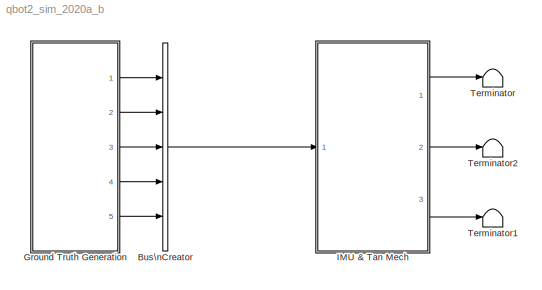
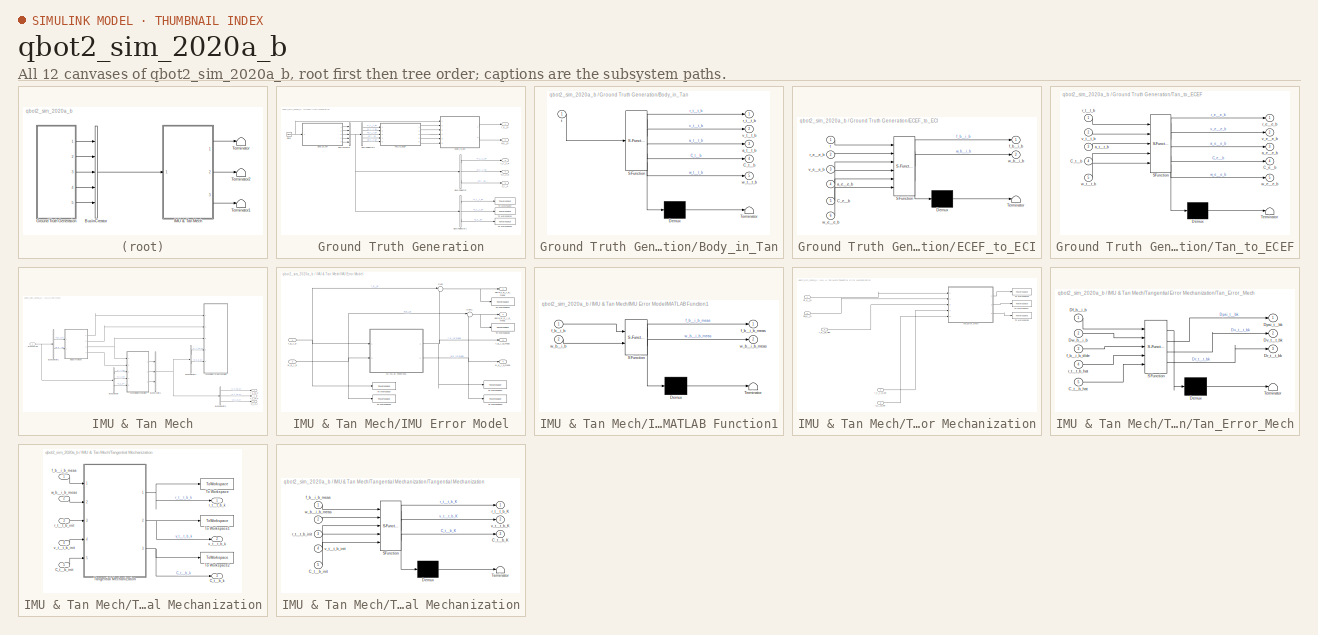
[diagram: thumbnail index - all 12 canvases of the model, root first then tree order]
MODEL qbot2_sim_2020a_b
KIND model
CONFIG InitFcn = % load_qbot2_sim
CONFIG StopFcn = if (P.plotsim_flag)\n    plot_sim(out, P)\nend
BLOCK [BusCreator] Bus\nCreator
  DisplayOption = bar
  InheritFromInputs = on
  Inputs = 5
  Ports = [5, 1]
  SID = 168
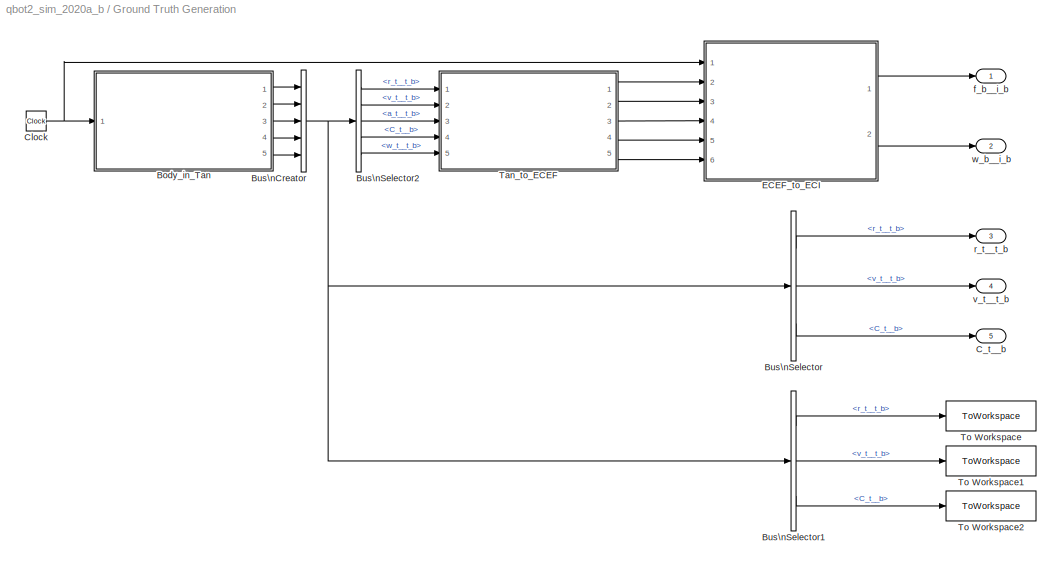
BLOCK [SubSystem] Ground Truth Generation
  Ports = [0, 5]
  RequestExecContextInheritance = off
  SID = 83
BLOCK [SubSystem] Ground Truth Generation/Body_in_Tan
  ErrorFcn = Stateflow.Translate.translate
  PermitHierarchicalResolution = ExplicitOnly
  Ports = [1, 5]
  RequestExecContextInheritance = off
  SFBlockType = MATLAB Function
  SID = 55
  TreatAsAtomicUnit = on
BLOCK [Demux] Ground Truth Generation/Body_in_Tan/ Demux 
  Outputs = 1
  Ports = [1, 1]
  SID = 55::31
BLOCK [S-Function] Ground Truth Generation/Body_in_Tan/ SFunction 
  EnableBusSupport = on
  FunctionName = sf_sfun
  Parameters = P
  PortCounts = [1 6]
  Ports = [1, 6]
  SFcnIsStateOwnerBlock = off
  SFunctionDeploymentMode = off
  SID = 55::30
  Tag = Stateflow S-Function 1
BLOCK [Terminator] Ground Truth Generation/Body_in_Tan/ Terminator 
  SID = 55::32
BLOCK [Outport] Ground Truth Generation/Body_in_Tan/C_t__b
  Port = 4
  SID = 55::25
BLOCK [Outport] Ground Truth Generation/Body_in_Tan/a_t__t_b
  Port = 3
  SID = 55::24
BLOCK [Outport] Ground Truth Generation/Body_in_Tan/r_t__t_b
  SID = 55::5
BLOCK [Inport] Ground Truth Generation/Body_in_Tan/t
  SID = 55::1
BLOCK [Outport] Ground Truth Generation/Body_in_Tan/v_t__t_b
  Port = 2
  SID = 55::23
BLOCK [Outport] Ground Truth Generation/Body_in_Tan/w_t__t_b
  Port = 5
  SID = 55::26
BLOCK [BusCreator] Ground Truth Generation/Bus\nCreator
  DisplayOption = bar
  InheritFromInputs = on
  Inputs = 5
  Ports = [5, 1]
  SID = 89
BLOCK [BusSelector] Ground Truth Generation/Bus\nSelector
  OutputSignals = r_t__t_b,v_t__t_b,C_t__b
  Ports = [1, 3]
  SID = 90
BLOCK [BusSelector] Ground Truth Generation/Bus\nSelector1
  OutputSignals = r_t__t_b,v_t__t_b,C_t__b
  Ports = [1, 3]
  SID = 116
BLOCK [BusSelector] Ground Truth Generation/Bus\nSelector2
  OutputSignals = r_t__t_b,v_t__t_b,a_t__t_b,C_t__b,w_t__t_b
  Ports = [1, 5]
  SID = 92
BLOCK [Outport] Ground Truth Generation/C_t__b
  Port = 5
  SID = 87
BLOCK [Clock] Ground Truth Generation/Clock
  SID = 53
BLOCK [SubSystem] Ground Truth Generation/ECEF_to_ECI
  ErrorFcn = Stateflow.Translate.translate
  PermitHierarchicalResolution = ExplicitOnly
  Ports = [6, 2]
  RequestExecContextInheritance = off
  SFBlockType = MATLAB Function
  SID = 57
  TreatAsAtomicUnit = on
BLOCK [Demux] Ground Truth Generation/ECEF_to_ECI/ Demux 
  Outputs = 1
  Ports = [1, 1]
  SID = 57::33
BLOCK [S-Function] Ground Truth Generation/ECEF_to_ECI/ SFunction 
  EnableBusSupport = on
  FunctionName = sf_sfun
  Parameters = P
  PortCounts = [6 3]
  Ports = [6, 3]
  SFcnIsStateOwnerBlock = off
  SFunctionDeploymentMode = off
  SID = 57::32
  Tag = Stateflow S-Function 4
BLOCK [Terminator] Ground Truth Generation/ECEF_to_ECI/ Terminator 
  SID = 57::34
BLOCK [Inport] Ground Truth Generation/ECEF_to_ECI/C_e__b
  Port = 5
  SID = 57::25
BLOCK [Inport] Ground Truth Generation/ECEF_to_ECI/a_e__e_b
  Port = 4
  SID = 57::24
BLOCK [Outport] Ground Truth Generation/ECEF_to_ECI/f_b__i_b
  SID = 57::5
BLOCK [Inport] Ground Truth Generation/ECEF_to_ECI/r_e__e_b
  Port = 2
  SID = 57::22
BLOCK [Inport] Ground Truth Generation/ECEF_to_ECI/t
  SID = 57::1
BLOCK [Inport] Ground Truth Generation/ECEF_to_ECI/v_e__e_b
  Port = 3
  SID = 57::23
BLOCK [Outport] Ground Truth Generation/ECEF_to_ECI/w_b__i_b
  Port = 2
  SID = 57::28
BLOCK [Inport] Ground Truth Generation/ECEF_to_ECI/w_e__e_b
  Port = 6
  SID = 57::26
BLOCK [SubSystem] Ground Truth Generation/Tan_to_ECEF
  ErrorFcn = Stateflow.Translate.translate
  PermitHierarchicalResolution = ExplicitOnly
  Ports = [5, 5]
  RequestExecContextInheritance = off
  SFBlockType = MATLAB Function
  SID = 56
  TreatAsAtomicUnit = on
BLOCK [Demux] Ground Truth Generation/Tan_to_ECEF/ Demux 
  Outputs = 1
  Ports = [1, 1]
  SID = 56::36
BLOCK [S-Function] Ground Truth Generation/Tan_to_ECEF/ SFunction 
  EnableBusSupport = on
  FunctionName = sf_sfun
  Parameters = P
  PortCounts = [5 6]
  Ports = [5, 6]
  SFcnIsStateOwnerBlock = off
  SFunctionDeploymentMode = off
  SID = 56::35
  Tag = Stateflow S-Function 3
BLOCK [Terminator] Ground Truth Generation/Tan_to_ECEF/ Terminator 
  SID = 56::37
BLOCK [Outport] Ground Truth Generation/Tan_to_ECEF/C_e__b
  Port = 4
  SID = 56::30
BLOCK [Inport] Ground Truth Generation/Tan_to_ECEF/C_t__b
  Port = 4
  SID = 56::24
BLOCK [Outport] Ground Truth Generation/Tan_to_ECEF/a_e__e_b
  Port = 3
  SID = 56::29
BLOCK [Inport] Ground Truth Generation/Tan_to_ECEF/a_t__t_b
  Port = 3
  SID = 56::23
BLOCK [Outport] Ground Truth Generation/Tan_to_ECEF/r_e__e_b
  SID = 56::27
BLOCK [Inport] Ground Truth Generation/Tan_to_ECEF/r_t__t_b
  SID = 56::1
BLOCK [Outport] Ground Truth Generation/Tan_to_ECEF/v_e__e_b
  Port = 2
  SID = 56::28
BLOCK [Inport] Ground Truth Generation/Tan_to_ECEF/v_t__t_b
  Port = 2
  SID = 56::22
BLOCK [Outport] Ground Truth Generation/Tan_to_ECEF/w_e__e_b
  Port = 5
  SID = 56::31
BLOCK [Inport] Ground Truth Generation/Tan_to_ECEF/w_t__t_b
  Port = 5
  SID = 56::25
BLOCK [ToWorkspace] Ground Truth Generation/To Workspace
  FixptAsFi = on
  MaxDataPoints = inf
  Ports = [1]
  SID = 127
  SampleTime = -1
  SaveFormat = Timeseries
  VariableName = P_truth
BLOCK [ToWorkspace] Ground Truth Generation/To Workspace1
  FixptAsFi = on
  MaxDataPoints = inf
  Ports = [1]
  SID = 138
  SampleTime = -1
  SaveFormat = Timeseries
  VariableName = V_truth
BLOCK [ToWorkspace] Ground Truth Generation/To Workspace2
  FixptAsFi = on
  MaxDataPoints = inf
  Ports = [1]
  SID = 139
  SampleTime = -1
  SaveFormat = Timeseries
  VariableName = A_truth
BLOCK [Outport] Ground Truth Generation/f_b__i_b
  SID = 84
BLOCK [Outport] Ground Truth Generation/r_t__t_b
  Port = 3
  SID = 86
BLOCK [Outport] Ground Truth Generation/v_t__t_b
  Port = 4
  SID = 88
BLOCK [Outport] Ground Truth Generation/w_b__i_b
  Port = 2
  SID = 85
BLOCK [SubSystem] IMU & Tan Mech
  Ports = [1, 3]
  RequestExecContextInheritance = off
  SID = 178
BLOCK [BusCreator] IMU & Tan Mech/Bus\nCreator1
  DisplayOption = bar
  InheritFromInputs = on
  Inputs = 3
  Ports = [3, 1]
  SID = 172
BLOCK [BusSelector] IMU & Tan Mech/Bus\nSelector
  OutputSignals = r_t__t_b,v_t__t_b,C_t__b
  Ports = [1, 3]
  SID = 169
BLOCK [BusSelector] IMU & Tan Mech/Bus\nSelector1
  OutputSignals = f_b__i_b,w_b__i_b
  Ports = [1, 2]
  SID = 171
BLOCK [BusSelector] IMU & Tan Mech/Bus\nSelector2
  OutputSignals = r_t__t_b_k,C_t__b_k
  Ports = [1, 2]
  SID = 173
BLOCK [BusSelector] IMU & Tan Mech/Bus\nSelector3
  OutputSignals = r_t__t_b_k,v_t__t_b_k,C_t__b_k
  Ports = [1, 3]
  SID = 174
BLOCK [Outport] IMU & Tan Mech/C_t__b_k
  Port = 3
  SID = 182
BLOCK [Inport] IMU & Tan Mech/Ground Truth
  SID = 179
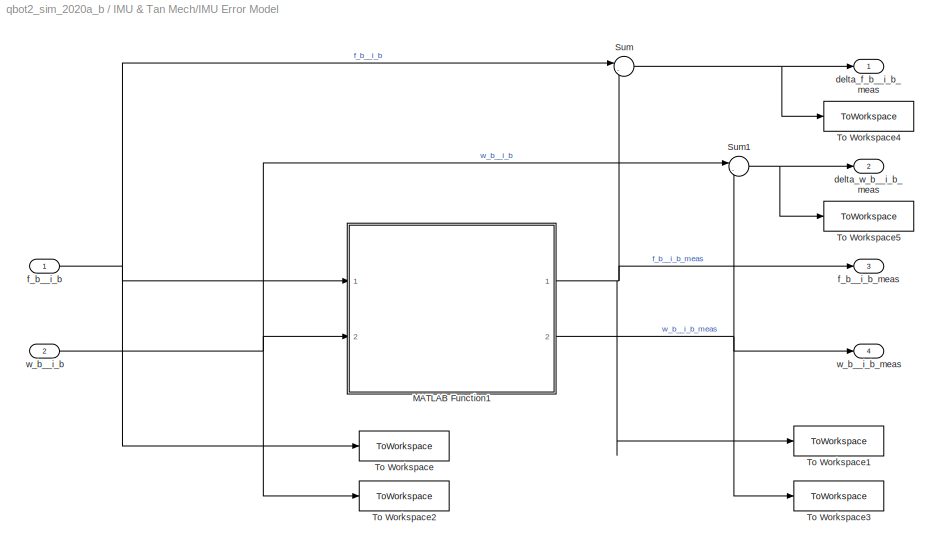
BLOCK [SubSystem] IMU & Tan Mech/IMU Error Model
  Ports = [2, 4]
  RequestExecContextInheritance = off
  SID = 95
BLOCK [SubSystem] IMU & Tan Mech/IMU Error Model/MATLAB Function1
  ErrorFcn = Stateflow.Translate.translate
  PermitHierarchicalResolution = ExplicitOnly
  Ports = [2, 2]
  RequestExecContextInheritance = off
  SFBlockType = MATLAB Function
  SID = 94
  TreatAsAtomicUnit = on
BLOCK [Demux] IMU & Tan Mech/IMU Error Model/MATLAB Function1/ Demux 
  Outputs = 1
  Ports = [1, 1]
  SID = 94::29
BLOCK [S-Function] IMU & Tan Mech/IMU Error Model/MATLAB Function1/ SFunction 
  EnableBusSupport = on
  FunctionName = sf_sfun
  Parameters = P
  PortCounts = [2 3]
  Ports = [2, 3]
  SFcnIsStateOwnerBlock = off
  SFunctionDeploymentMode = off
  SID = 94::28
  Tag = Stateflow S-Function 5
BLOCK [Terminator] IMU & Tan Mech/IMU Error Model/MATLAB Function1/ Terminator 
  SID = 94::30
BLOCK [Inport] IMU & Tan Mech/IMU Error Model/MATLAB Function1/f_b__i_b
  SID = 94::1
BLOCK [Outport] IMU & Tan Mech/IMU Error Model/MATLAB Function1/f_b__i_b_meas
  SID = 94::5
BLOCK [Inport] IMU & Tan Mech/IMU Error Model/MATLAB Function1/w_b__i_b
  Port = 2
  SID = 94::22
BLOCK [Outport] IMU & Tan Mech/IMU Error Model/MATLAB Function1/w_b__i_b_meas
  Port = 2
  SID = 94::24
BLOCK [Sum] IMU & Tan Mech/IMU Error Model/Sum
  Inputs = |-+
  Ports = [2, 1]
  SID = 142
BLOCK [Sum] IMU & Tan Mech/IMU Error Model/Sum1
  Inputs = |-+
  Ports = [2, 1]
  SID = 143
BLOCK [ToWorkspace] IMU & Tan Mech/IMU Error Model/To Workspace
  FixptAsFi = on
  MaxDataPoints = inf
  Ports = [1]
  SID = 128
  SampleTime = -1
  SaveFormat = Timeseries
  VariableName = accel_truth
BLOCK [ToWorkspace] IMU & Tan Mech/IMU Error Model/To Workspace1
  FixptAsFi = on
  MaxDataPoints = inf
  Ports = [1]
  SID = 129
  SampleTime = -1
  SaveFormat = Timeseries
  VariableName = accel_meas
BLOCK [ToWorkspace] IMU & Tan Mech/IMU Error Model/To Workspace2
  FixptAsFi = on
  MaxDataPoints = inf
  Ports = [1]
  SID = 136
  SampleTime = -1
  SaveFormat = Timeseries
  VariableName = gyro_truth
BLOCK [ToWorkspace] IMU & Tan Mech/IMU Error Model/To Workspace3
  FixptAsFi = on
  MaxDataPoints = inf
  Ports = [1]
  SID = 137
  SampleTime = -1
  SaveFormat = Timeseries
  VariableName = gyro_meas
BLOCK [ToWorkspace] IMU & Tan Mech/IMU Error Model/To Workspace4
  FixptAsFi = on
  MaxDataPoints = inf
  Ports = [1]
  SID = 144
  SampleTime = -1
  SaveFormat = Timeseries
  VariableName = delta_f_b__i_b
BLOCK [ToWorkspace] IMU & Tan Mech/IMU Error Model/To Workspace5
  FixptAsFi = on
  MaxDataPoints = inf
  Ports = [1]
  SID = 145
  SampleTime = -1
  SaveFormat = Timeseries
  VariableName = delta_w_b__i_b
BLOCK [Outport] IMU & Tan Mech/IMU Error Model/delta_f_b__i_b_meas
  SID = 140
BLOCK [Outport] IMU & Tan Mech/IMU Error Model/delta_w_b__i_b_meas
  Port = 2
  SID = 141
BLOCK [Inport] IMU & Tan Mech/IMU Error Model/f_b__i_b
  SID = 96
BLOCK [Outport] IMU & Tan Mech/IMU Error Model/f_b__i_b_meas
  Port = 3
  SID = 98
BLOCK [Inport] IMU & Tan Mech/IMU Error Model/w_b__i_b
  Port = 2
  SID = 97
BLOCK [Outport] IMU & Tan Mech/IMU Error Model/w_b__i_b_meas
  Port = 4
  SID = 99
BLOCK [SubSystem] IMU & Tan Mech/Tangential Error Mechanization
  Ports = [5]
  RequestExecContextInheritance = off
  SID = 161
BLOCK [Inport] IMU & Tan Mech/Tangential Error Mechanization/C_t__b_hat
  Port = 5
  SID = 166
BLOCK [Inport] IMU & Tan Mech/Tangential Error Mechanization/Df_b__i_b
  SID = 162
BLOCK [Inport] IMU & Tan Mech/Tangential Error Mechanization/Dw_b__i_b
  Port = 2
  SID = 163
BLOCK [SubSystem] IMU & Tan Mech/Tangential Error Mechanization/Tan_Error_Mech
  ErrorFcn = Stateflow.Translate.translate
  PermitHierarchicalResolution = ExplicitOnly
  Ports = [5, 3]
  RequestExecContextInheritance = off
  SFBlockType = MATLAB Function
  SID = 148
  TreatAsAtomicUnit = on
BLOCK [Demux] IMU & Tan Mech/Tangential Error Mechanization/Tan_Error_Mech/ Demux 
  Outputs = 1
  Ports = [1, 1]
  SID = 148::20
BLOCK [S-Function] IMU & Tan Mech/Tangential Error Mechanization/Tan_Error_Mech/ SFunction 
  EnableBusSupport = on
  FunctionName = sf_sfun
  Parameters = P
  PortCounts = [5 4]
  Ports = [5, 4]
  SFcnIsStateOwnerBlock = off
  SFunctionDeploymentMode = off
  SID = 148::19
  Tag = Stateflow S-Function 6
BLOCK [Terminator] IMU & Tan Mech/Tangential Error Mechanization/Tan_Error_Mech/ Terminator 
  SID = 148::21
BLOCK [Inport] IMU & Tan Mech/Tangential Error Mechanization/Tan_Error_Mech/C_t__b_hat
  Port = 5
  SID = 148::25
BLOCK [Inport] IMU & Tan Mech/Tangential Error Mechanization/Tan_Error_Mech/Df_b__i_b
  SID = 148::1
BLOCK [Outport] IMU & Tan Mech/Tangential Error Mechanization/Tan_Error_Mech/Dpsi_t__bk
  SID = 148::5
BLOCK [Outport] IMU & Tan Mech/Tangential Error Mechanization/Tan_Error_Mech/Dr_t__t_bk
  Port = 3
  SID = 148::28
BLOCK [Outport] IMU & Tan Mech/Tangential Error Mechanization/Tan_Error_Mech/Dv_t__t_bk
  Port = 2
  SID = 148::27
BLOCK [Inport] IMU & Tan Mech/Tangential Error Mechanization/Tan_Error_Mech/Dw_b__i_b
  Port = 2
  SID = 148::22
BLOCK [Inport] IMU & Tan Mech/Tangential Error Mechanization/Tan_Error_Mech/f_b__i_b_tilde
  Port = 3
  SID = 148::23
BLOCK [Inport] IMU & Tan Mech/Tangential Error Mechanization/Tan_Error_Mech/r_t__t_b_hat
  Port = 4
  SID = 148::24
BLOCK [ToWorkspace] IMU & Tan Mech/Tangential Error Mechanization/To Workspace3
  FixptAsFi = on
  MaxDataPoints = inf
  Ports = [1]
  SID = 149
  SampleTime = -1
  SaveFormat = Timeseries
  VariableName = delta_psi_t__t_b
BLOCK [ToWorkspace] IMU & Tan Mech/Tangential Error Mechanization/To Workspace4
  FixptAsFi = on
  MaxDataPoints = inf
  Ports = [1]
  SID = 150
  SampleTime = -1
  SaveFormat = Timeseries
  VariableName = delta_v_t__t_b
BLOCK [ToWorkspace] IMU & Tan Mech/Tangential Error Mechanization/To Workspace5
  FixptAsFi = on
  MaxDataPoints = inf
  Ports = [1]
  SID = 151
  SampleTime = -1
  SaveFormat = Timeseries
  VariableName = delta_r_t__t_b
BLOCK [Inport] IMU & Tan Mech/Tangential Error Mechanization/f_b__i_b_tilde
  Port = 3
  SID = 164
BLOCK [Inport] IMU & Tan Mech/Tangential Error Mechanization/r_t__t_b_hat
  Port = 4
  SID = 165
BLOCK [SubSystem] IMU & Tan Mech/Tangential Mechanization
  Ports = [5, 3]
  RequestExecContextInheritance = off
  SID = 152
BLOCK [Inport] IMU & Tan Mech/Tangential Mechanization/C_t__b_init
  Port = 5
  SID = 157
BLOCK [Outport] IMU & Tan Mech/Tangential Mechanization/C_t__b_k
  Port = 3
  SID = 159
BLOCK [SubSystem] IMU & Tan Mech/Tangential Mechanization/Tangential Mechanization
  ErrorFcn = Stateflow.Translate.translate
  PermitHierarchicalResolution = ExplicitOnly
  Ports = [5, 3]
  RequestExecContextInheritance = off
  SFBlockType = MATLAB Function
  SID = 47
  TreatAsAtomicUnit = on
BLOCK [Demux] IMU & Tan Mech/Tangential Mechanization/Tangential Mechanization/ Demux 
  Outputs = 1
  Ports = [1, 1]
  SID = 47::35
BLOCK [S-Function] IMU & Tan Mech/Tangential Mechanization/Tangential Mechanization/ SFunction 
  EnableBusSupport = on
  FunctionName = sf_sfun
  Parameters = P
  PortCounts = [5 4]
  Ports = [5, 4]
  SFcnIsStateOwnerBlock = off
  SFunctionDeploymentMode = off
  SID = 47::34
  Tag = Stateflow S-Function 2
BLOCK [Terminator] IMU & Tan Mech/Tangential Mechanization/Tangential Mechanization/ Terminator 
  SID = 47::36
BLOCK [Outport] IMU & Tan Mech/Tangential Mechanization/Tangential Mechanization/C_t__b_K
  Port = 3
  SID = 47::27
BLOCK [Inport] IMU & Tan Mech/Tangential Mechanization/Tangential Mechanization/C_t__b_init
  Port = 5
  SID = 47::30
BLOCK [Inport] IMU & Tan Mech/Tangential Mechanization/Tangential Mechanization/f_b__i_b_meas
  SID = 47::1
BLOCK [Outport] IMU & Tan Mech/Tangential Mechanization/Tangential Mechanization/r_t__t_b_K
  SID = 47::5
BLOCK [Inport] IMU & Tan Mech/Tangential Mechanization/Tangential Mechanization/r_t__t_b_init
  Port = 3
  SID = 47::28
BLOCK [Outport] IMU & Tan Mech/Tangential Mechanization/Tangential Mechanization/v_t__t_b_K
  Port = 2
  SID = 47::26
BLOCK [Inport] IMU & Tan Mech/Tangential Mechanization/Tangential Mechanization/v_t__t_b_init
  Port = 4
  SID = 47::29
BLOCK [Inport] IMU & Tan Mech/Tangential Mechanization/Tangential Mechanization/w_b__i_b_meas
  Port = 2
  SID = 47::25
BLOCK [ToWorkspace] IMU & Tan Mech/Tangential Mechanization/To Workspace
  FixptAsFi = on
  MaxDataPoints = inf
  Ports = [1]
  SID = 133
  SampleTime = -1
  SaveFormat = Timeseries
  VariableName = P_meas
BLOCK [ToWorkspace] IMU & Tan Mech/Tangential Mechanization/To Workspace1
  FixptAsFi = on
  MaxDataPoints = inf
  Ports = [1]
  SID = 134
  SampleTime = -1
  SaveFormat = Timeseries
  VariableName = V_meas
BLOCK [ToWorkspace] IMU & Tan Mech/Tangential Mechanization/To Workspace2
  FixptAsFi = on
  MaxDataPoints = inf
  Ports = [1]
  SID = 135
  SampleTime = -1
  SaveFormat = Timeseries
  VariableName = A_meas
BLOCK [Inport] IMU & Tan Mech/Tangential Mechanization/f_b__i_b_meas
  SID = 153
BLOCK [Inport] IMU & Tan Mech/Tangential Mechanization/r_t__t_b_init
  Port = 3
  SID = 155
BLOCK [Outport] IMU & Tan Mech/Tangential Mechanization/r_t__t_b_k
  SID = 158
BLOCK [Inport] IMU & Tan Mech/Tangential Mechanization/v_t__t_b_init
  Port = 4
  SID = 156
BLOCK [Outport] IMU & Tan Mech/Tangential Mechanization/v_t__t_b_k
  Port = 2
  SID = 160
BLOCK [Inport] IMU & Tan Mech/Tangential Mechanization/w_b__i_b_meas
  Port = 2
  SID = 154
BLOCK [Outport] IMU & Tan Mech/r_t__t_b_k
  SID = 180
BLOCK [Outport] IMU & Tan Mech/v_t__t_b_k
  Port = 2
  SID = 181
BLOCK [Terminator] Terminator
  SID = 175
BLOCK [Terminator] Terminator1
  SID = 176
BLOCK [Terminator] Terminator2
  SID = 177
LINE Bus\nCreator:1 -> IMU & Tan Mech:1
LINE Ground Truth Generation/Body_in_Tan/ Demux :1 -> Ground Truth Generation/Body_in_Tan/ Terminator :1
LINE Ground Truth Generation/Body_in_Tan/ SFunction :1 -> Ground Truth Generation/Body_in_Tan/ Demux :1
LINE Ground Truth Generation/Body_in_Tan/ SFunction :2 -> Ground Truth Generation/Body_in_Tan/r_t__t_b:1
LINE Ground Truth Generation/Body_in_Tan/ SFunction :3 -> Ground Truth Generation/Body_in_Tan/v_t__t_b:1
LINE Ground Truth Generation/Body_in_Tan/ SFunction :4 -> Ground Truth Generation/Body_in_Tan/a_t__t_b:1
LINE Ground Truth Generation/Body_in_Tan/ SFunction :5 -> Ground Truth Generation/Body_in_Tan/C_t__b:1
LINE Ground Truth Generation/Body_in_Tan/ SFunction :6 -> Ground Truth Generation/Body_in_Tan/w_t__t_b:1
LINE Ground Truth Generation/Body_in_Tan/t:1 -> Ground Truth Generation/Body_in_Tan/ SFunction :1
LINE Ground Truth Generation/Body_in_Tan:1 -> Ground Truth Generation/Bus\nCreator:1
LINE Ground Truth Generation/Body_in_Tan:2 -> Ground Truth Generation/Bus\nCreator:2
LINE Ground Truth Generation/Body_in_Tan:3 -> Ground Truth Generation/Bus\nCreator:3
LINE Ground Truth Generation/Body_in_Tan:4 -> Ground Truth Generation/Bus\nCreator:4
LINE Ground Truth Generation/Body_in_Tan:5 -> Ground Truth Generation/Bus\nCreator:5
NET Ground Truth Generation/Bus\nCreator:1 -> Ground Truth Generation/Bus\nSelector1:1, Ground Truth Generation/Bus\nSelector2:1, Ground Truth Generation/Bus\nSelector:1
LINE Ground Truth Generation/Bus\nSelector1:1 -> Ground Truth Generation/To Workspace:1
LINE Ground Truth Generation/Bus\nSelector1:2 -> Ground Truth Generation/To Workspace1:1
LINE Ground Truth Generation/Bus\nSelector1:3 -> Ground Truth Generation/To Workspace2:1
LINE Ground Truth Generation/Bus\nSelector2:1 -> Ground Truth Generation/Tan_to_ECEF:1
LINE Ground Truth Generation/Bus\nSelector2:2 -> Ground Truth Generation/Tan_to_ECEF:2
LINE Ground Truth Generation/Bus\nSelector2:3 -> Ground Truth Generation/Tan_to_ECEF:3
LINE Ground Truth Generation/Bus\nSelector2:4 -> Ground Truth Generation/Tan_to_ECEF:4
LINE Ground Truth Generation/Bus\nSelector2:5 -> Ground Truth Generation/Tan_to_ECEF:5
LINE Ground Truth Generation/Bus\nSelector:1 -> Ground Truth Generation/r_t__t_b:1
LINE Ground Truth Generation/Bus\nSelector:2 -> Ground Truth Generation/v_t__t_b:1
LINE Ground Truth Generation/Bus\nSelector:3 -> Ground Truth Generation/C_t__b:1
NET Ground Truth Generation/Clock:1 -> Ground Truth Generation/Body_in_Tan:1, Ground Truth Generation/ECEF_to_ECI:1
LINE Ground Truth Generation/ECEF_to_ECI/ Demux :1 -> Ground Truth Generation/ECEF_to_ECI/ Terminator :1
LINE Ground Truth Generation/ECEF_to_ECI/ SFunction :1 -> Ground Truth Generation/ECEF_to_ECI/ Demux :1
LINE Ground Truth Generation/ECEF_to_ECI/ SFunction :2 -> Ground Truth Generation/ECEF_to_ECI/f_b__i_b:1
LINE Ground Truth Generation/ECEF_to_ECI/ SFunction :3 -> Ground Truth Generation/ECEF_to_ECI/w_b__i_b:1
LINE Ground Truth Generation/ECEF_to_ECI/C_e__b:1 -> Ground Truth Generation/ECEF_to_ECI/ SFunction :5
LINE Ground Truth Generation/ECEF_to_ECI/a_e__e_b:1 -> Ground Truth Generation/ECEF_to_ECI/ SFunction :4
LINE Ground Truth Generation/ECEF_to_ECI/r_e__e_b:1 -> Ground Truth Generation/ECEF_to_ECI/ SFunction :2
LINE Ground Truth Generation/ECEF_to_ECI/t:1 -> Ground Truth Generation/ECEF_to_ECI/ SFunction :1
LINE Ground Truth Generation/ECEF_to_ECI/v_e__e_b:1 -> Ground Truth Generation/ECEF_to_ECI/ SFunction :3
LINE Ground Truth Generation/ECEF_to_ECI/w_e__e_b:1 -> Ground Truth Generation/ECEF_to_ECI/ SFunction :6
LINE Ground Truth Generation/ECEF_to_ECI:1 -> Ground Truth Generation/f_b__i_b:1
LINE Ground Truth Generation/ECEF_to_ECI:2 -> Ground Truth Generation/w_b__i_b:1
LINE Ground Truth Generation/Tan_to_ECEF/ Demux :1 -> Ground Truth Generation/Tan_to_ECEF/ Terminator :1
LINE Ground Truth Generation/Tan_to_ECEF/ SFunction :1 -> Ground Truth Generation/Tan_to_ECEF/ Demux :1
LINE Ground Truth Generation/Tan_to_ECEF/ SFunction :2 -> Ground Truth Generation/Tan_to_ECEF/r_e__e_b:1
LINE Ground Truth Generation/Tan_to_ECEF/ SFunction :3 -> Ground Truth Generation/Tan_to_ECEF/v_e__e_b:1
LINE Ground Truth Generation/Tan_to_ECEF/ SFunction :4 -> Ground Truth Generation/Tan_to_ECEF/a_e__e_b:1
LINE Ground Truth Generation/Tan_to_ECEF/ SFunction :5 -> Ground Truth Generation/Tan_to_ECEF/C_e__b:1
LINE Ground Truth Generation/Tan_to_ECEF/ SFunction :6 -> Ground Truth Generation/Tan_to_ECEF/w_e__e_b:1
LINE Ground Truth Generation/Tan_to_ECEF/C_t__b:1 -> Ground Truth Generation/Tan_to_ECEF/ SFunction :4
LINE Ground Truth Generation/Tan_to_ECEF/a_t__t_b:1 -> Ground Truth Generation/Tan_to_ECEF/ SFunction :3
LINE Ground Truth Generation/Tan_to_ECEF/r_t__t_b:1 -> Ground Truth Generation/Tan_to_ECEF/ SFunction :1
LINE Ground Truth Generation/Tan_to_ECEF/v_t__t_b:1 -> Ground Truth Generation/Tan_to_ECEF/ SFunction :2
LINE Ground Truth Generation/Tan_to_ECEF/w_t__t_b:1 -> Ground Truth Generation/Tan_to_ECEF/ SFunction :5
LINE Ground Truth Generation/Tan_to_ECEF:1 -> Ground Truth Generation/ECEF_to_ECI:2
LINE Ground Truth Generation/Tan_to_ECEF:2 -> Ground Truth Generation/ECEF_to_ECI:3
LINE Ground Truth Generation/Tan_to_ECEF:3 -> Ground Truth Generation/ECEF_to_ECI:4
LINE Ground Truth Generation/Tan_to_ECEF:4 -> Ground Truth Generation/ECEF_to_ECI:5
LINE Ground Truth Generation/Tan_to_ECEF:5 -> Ground Truth Generation/ECEF_to_ECI:6
LINE Ground Truth Generation:1 -> Bus\nCreator:1
LINE Ground Truth Generation:2 -> Bus\nCreator:2
LINE Ground Truth Generation:3 -> Bus\nCreator:3
LINE Ground Truth Generation:4 -> Bus\nCreator:4
LINE Ground Truth Generation:5 -> Bus\nCreator:5
NET IMU & Tan Mech/Bus\nCreator1:1 -> IMU & Tan Mech/Bus\nSelector2:1, IMU & Tan Mech/Bus\nSelector3:1
LINE IMU & Tan Mech/Bus\nSelector1:1 -> IMU & Tan Mech/IMU Error Model:1
LINE IMU & Tan Mech/Bus\nSelector1:2 -> IMU & Tan Mech/IMU Error Model:2
LINE IMU & Tan Mech/Bus\nSelector2:1 -> IMU & Tan Mech/Tangential Error Mechanization:4
LINE IMU & Tan Mech/Bus\nSelector2:2 -> IMU & Tan Mech/Tangential Error Mechanization:5
LINE IMU & Tan Mech/Bus\nSelector3:1 -> IMU & Tan Mech/r_t__t_b_k:1
LINE IMU & Tan Mech/Bus\nSelector3:2 -> IMU & Tan Mech/v_t__t_b_k:1
LINE IMU & Tan Mech/Bus\nSelector3:3 -> IMU & Tan Mech/C_t__b_k:1
LINE IMU & Tan Mech/Bus\nSelector:1 -> IMU & Tan Mech/Tangential Mechanization:3
LINE IMU & Tan Mech/Bus\nSelector:2 -> IMU & Tan Mech/Tangential Mechanization:4
LINE IMU & Tan Mech/Bus\nSelector:3 -> IMU & Tan Mech/Tangential Mechanization:5
NET IMU & Tan Mech/Ground Truth:1 -> IMU & Tan Mech/Bus\nSelector1:1, IMU & Tan Mech/Bus\nSelector:1
LINE IMU & Tan Mech/IMU Error Model/MATLAB Function1/ Demux :1 -> IMU & Tan Mech/IMU Error Model/MATLAB Function1/ Terminator :1
LINE IMU & Tan Mech/IMU Error Model/MATLAB Function1/ SFunction :1 -> IMU & Tan Mech/IMU Error Model/MATLAB Function1/ Demux :1
LINE IMU & Tan Mech/IMU Error Model/MATLAB Function1/ SFunction :2 -> IMU & Tan Mech/IMU Error Model/MATLAB Function1/f_b__i_b_meas:1
LINE IMU & Tan Mech/IMU Error Model/MATLAB Function1/ SFunction :3 -> IMU & Tan Mech/IMU Error Model/MATLAB Function1/w_b__i_b_meas:1
LINE IMU & Tan Mech/IMU Error Model/MATLAB Function1/f_b__i_b:1 -> IMU & Tan Mech/IMU Error Model/MATLAB Function1/ SFunction :1
LINE IMU & Tan Mech/IMU Error Model/MATLAB Function1/w_b__i_b:1 -> IMU & Tan Mech/IMU Error Model/MATLAB Function1/ SFunction :2
NET IMU & Tan Mech/IMU Error Model/MATLAB Function1:1 -> IMU & Tan Mech/IMU Error Model/Sum:2, IMU & Tan Mech/IMU Error Model/To Workspace1:1, IMU & Tan Mech/IMU Error Model/f_b__i_b_meas:1
NET IMU & Tan Mech/IMU Error Model/MATLAB Function1:2 -> IMU & Tan Mech/IMU Error Model/Sum1:2, IMU & Tan Mech/IMU Error Model/To Workspace3:1, IMU & Tan Mech/IMU Error Model/w_b__i_b_meas:1
NET IMU & Tan Mech/IMU Error Model/Sum1:1 -> IMU & Tan Mech/IMU Error Model/To Workspace5:1, IMU & Tan Mech/IMU Error Model/delta_w_b__i_b_meas:1
NET IMU & Tan Mech/IMU Error Model/Sum:1 -> IMU & Tan Mech/IMU Error Model/To Workspace4:1, IMU & Tan Mech/IMU Error Model/delta_f_b__i_b_meas:1
NET IMU & Tan Mech/IMU Error Model/f_b__i_b:1 -> IMU & Tan Mech/IMU Error Model/MATLAB Function1:1, IMU & Tan Mech/IMU Error Model/Sum:1, IMU & Tan Mech/IMU Error Model/To Workspace:1
NET IMU & Tan Mech/IMU Error Model/w_b__i_b:1 -> IMU & Tan Mech/IMU Error Model/MATLAB Function1:2, IMU & Tan Mech/IMU Error Model/Sum1:1, IMU & Tan Mech/IMU Error Model/To Workspace2:1
LINE IMU & Tan Mech/IMU Error Model:1 -> IMU & Tan Mech/Tangential Error Mechanization:1
LINE IMU & Tan Mech/IMU Error Model:2 -> IMU & Tan Mech/Tangential Error Mechanization:2
NET IMU & Tan Mech/IMU Error Model:3 -> IMU & Tan Mech/Tangential Error Mechanization:3, IMU & Tan Mech/Tangential Mechanization:1
LINE IMU & Tan Mech/IMU Error Model:4 -> IMU & Tan Mech/Tangential Mechanization:2
LINE IMU & Tan Mech/Tangential Error Mechanization/C_t__b_hat:1 -> IMU & Tan Mech/Tangential Error Mechanization/Tan_Error_Mech:5
LINE IMU & Tan Mech/Tangential Error Mechanization/Df_b__i_b:1 -> IMU & Tan Mech/Tangential Error Mechanization/Tan_Error_Mech:1
LINE IMU & Tan Mech/Tangential Error Mechanization/Dw_b__i_b:1 -> IMU & Tan Mech/Tangential Error Mechanization/Tan_Error_Mech:2
LINE IMU & Tan Mech/Tangential Error Mechanization/Tan_Error_Mech/ Demux :1 -> IMU & Tan Mech/Tangential Error Mechanization/Tan_Error_Mech/ Terminator :1
LINE IMU & Tan Mech/Tangential Error Mechanization/Tan_Error_Mech/ SFunction :1 -> IMU & Tan Mech/Tangential Error Mechanization/Tan_Error_Mech/ Demux :1
LINE IMU & Tan Mech/Tangential Error Mechanization/Tan_Error_Mech/ SFunction :2 -> IMU & Tan Mech/Tangential Error Mechanization/Tan_Error_Mech/Dpsi_t__bk:1
LINE IMU & Tan Mech/Tangential Error Mechanization/Tan_Error_Mech/ SFunction :3 -> IMU & Tan Mech/Tangential Error Mechanization/Tan_Error_Mech/Dv_t__t_bk:1
LINE IMU & Tan Mech/Tangential Error Mechanization/Tan_Error_Mech/ SFunction :4 -> IMU & Tan Mech/Tangential Error Mechanization/Tan_Error_Mech/Dr_t__t_bk:1
LINE IMU & Tan Mech/Tangential Error Mechanization/Tan_Error_Mech/C_t__b_hat:1 -> IMU & Tan Mech/Tangential Error Mechanization/Tan_Error_Mech/ SFunction :5
LINE IMU & Tan Mech/Tangential Error Mechanization/Tan_Error_Mech/Df_b__i_b:1 -> IMU & Tan Mech/Tangential Error Mechanization/Tan_Error_Mech/ SFunction :1
LINE IMU & Tan Mech/Tangential Error Mechanization/Tan_Error_Mech/Dw_b__i_b:1 -> IMU & Tan Mech/Tangential Error Mechanization/Tan_Error_Mech/ SFunction :2
LINE IMU & Tan Mech/Tangential Error Mechanization/Tan_Error_Mech/f_b__i_b_tilde:1 -> IMU & Tan Mech/Tangential Error Mechanization/Tan_Error_Mech/ SFunction :3
LINE IMU & Tan Mech/Tangential Error Mechanization/Tan_Error_Mech/r_t__t_b_hat:1 -> IMU & Tan Mech/Tangential Error Mechanization/Tan_Error_Mech/ SFunction :4
LINE IMU & Tan Mech/Tangential Error Mechanization/Tan_Error_Mech:1 -> IMU & Tan Mech/Tangential Error Mechanization/To Workspace3:1
LINE IMU & Tan Mech/Tangential Error Mechanization/Tan_Error_Mech:2 -> IMU & Tan Mech/Tangential Error Mechanization/To Workspace4:1
LINE IMU & Tan Mech/Tangential Error Mechanization/Tan_Error_Mech:3 -> IMU & Tan Mech/Tangential Error Mechanization/To Workspace5:1
LINE IMU & Tan Mech/Tangential Error Mechanization/f_b__i_b_tilde:1 -> IMU & Tan Mech/Tangential Error Mechanization/Tan_Error_Mech:3
LINE IMU & Tan Mech/Tangential Error Mechanization/r_t__t_b_hat:1 -> IMU & Tan Mech/Tangential Error Mechanization/Tan_Error_Mech:4
LINE IMU & Tan Mech/Tangential Mechanization/C_t__b_init:1 -> IMU & Tan Mech/Tangential Mechanization/Tangential Mechanization:5
LINE IMU & Tan Mech/Tangential Mechanization/Tangential Mechanization/ Demux :1 -> IMU & Tan Mech/Tangential Mechanization/Tangential Mechanization/ Terminator :1
LINE IMU & Tan Mech/Tangential Mechanization/Tangential Mechanization/ SFunction :1 -> IMU & Tan Mech/Tangential Mechanization/Tangential Mechanization/ Demux :1
LINE IMU & Tan Mech/Tangential Mechanization/Tangential Mechanization/ SFunction :2 -> IMU & Tan Mech/Tangential Mechanization/Tangential Mechanization/r_t__t_b_K:1
LINE IMU & Tan Mech/Tangential Mechanization/Tangential Mechanization/ SFunction :3 -> IMU & Tan Mech/Tangential Mechanization/Tangential Mechanization/v_t__t_b_K:1
LINE IMU & Tan Mech/Tangential Mechanization/Tangential Mechanization/ SFunction :4 -> IMU & Tan Mech/Tangential Mechanization/Tangential Mechanization/C_t__b_K:1
LINE IMU & Tan Mech/Tangential Mechanization/Tangential Mechanization/C_t__b_init:1 -> IMU & Tan Mech/Tangential Mechanization/Tangential Mechanization/ SFunction :5
LINE IMU & Tan Mech/Tangential Mechanization/Tangential Mechanization/f_b__i_b_meas:1 -> IMU & Tan Mech/Tangential Mechanization/Tangential Mechanization/ SFunction :1
LINE IMU & Tan Mech/Tangential Mechanization/Tangential Mechanization/r_t__t_b_init:1 -> IMU & Tan Mech/Tangential Mechanization/Tangential Mechanization/ SFunction :3
LINE IMU & Tan Mech/Tangential Mechanization/Tangential Mechanization/v_t__t_b_init:1 -> IMU & Tan Mech/Tangential Mechanization/Tangential Mechanization/ SFunction :4
LINE IMU & Tan Mech/Tangential Mechanization/Tangential Mechanization/w_b__i_b_meas:1 -> IMU & Tan Mech/Tangential Mechanization/Tangential Mechanization/ SFunction :2
NET IMU & Tan Mech/Tangential Mechanization/Tangential Mechanization:1 -> IMU & Tan Mech/Tangential Mechanization/To Workspace:1, IMU & Tan Mech/Tangential Mechanization/r_t__t_b_k:1
NET IMU & Tan Mech/Tangential Mechanization/Tangential Mechanization:2 -> IMU & Tan Mech/Tangential Mechanization/To Workspace1:1, IMU & Tan Mech/Tangential Mechanization/v_t__t_b_k:1
NET IMU & Tan Mech/Tangential Mechanization/Tangential Mechanization:3 -> IMU & Tan Mech/Tangential Mechanization/C_t__b_k:1, IMU & Tan Mech/Tangential Mechanization/To Workspace2:1
LINE IMU & Tan Mech/Tangential Mechanization/f_b__i_b_meas:1 -> IMU & Tan Mech/Tangential Mechanization/Tangential Mechanization:1
LINE IMU & Tan Mech/Tangential Mechanization/r_t__t_b_init:1 -> IMU & Tan Mech/Tangential Mechanization/Tangential Mechanization:3
LINE IMU & Tan Mech/Tangential Mechanization/v_t__t_b_init:1 -> IMU & Tan Mech/Tangential Mechanization/Tangential Mechanization:4
LINE IMU & Tan Mech/Tangential Mechanization/w_b__i_b_meas:1 -> IMU & Tan Mech/Tangential Mechanization/Tangential Mechanization:2
LINE IMU & Tan Mech/Tangential Mechanization:1 -> IMU & Tan Mech/Bus\nCreator1:1
LINE IMU & Tan Mech/Tangential Mechanization:2 -> IMU & Tan Mech/Bus\nCreator1:2
LINE IMU & Tan Mech/Tangential Mechanization:3 -> IMU & Tan Mech/Bus\nCreator1:3
LINE IMU & Tan Mech:1 -> Terminator:1
LINE IMU & Tan Mech:2 -> Terminator2:1
LINE IMU & Tan Mech:3 -> Terminator1:1
note: NET lines group one-source signal fan-out (src -> all destinations, sorted); 1:1 wires keep LINE
CHART Ground Truth Generation/Body_in_Tan states=1 transitions=1
  STATE_LABEL 'eML_blk_kernel()'
CHART IMU & Tan Mech/Tangential Mechanization/Tangential Mechanization states=1 transitions=1
  STATE_LABEL 'eML_blk_kernel()'
CHART Ground Truth Generation/Tan_to_ECEF states=1 transitions=1
  STATE_LABEL 'eML_blk_kernel()'
CHART Ground Truth Generation/ECEF_to_ECI states=1 transitions=1
  STATE_LABEL 'eML_blk_kernel()'
CHART IMU & Tan Mech/IMU Error Model/MATLAB Function1 states=1 transitions=1
  STATE_LABEL 'eML_blk_kernel()'
CHART IMU & Tan Mech/Tangential Error Mechanization/Tan_Error_Mech states=1 transitions=1
  STATE_LABEL 'eML_blk_kernel()'
